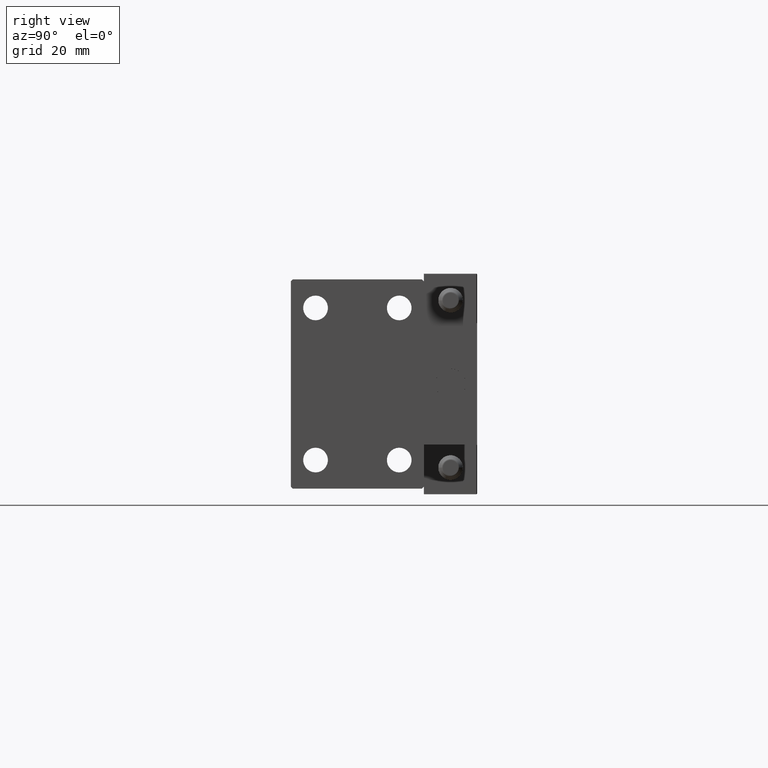
[diagram: clean part render]
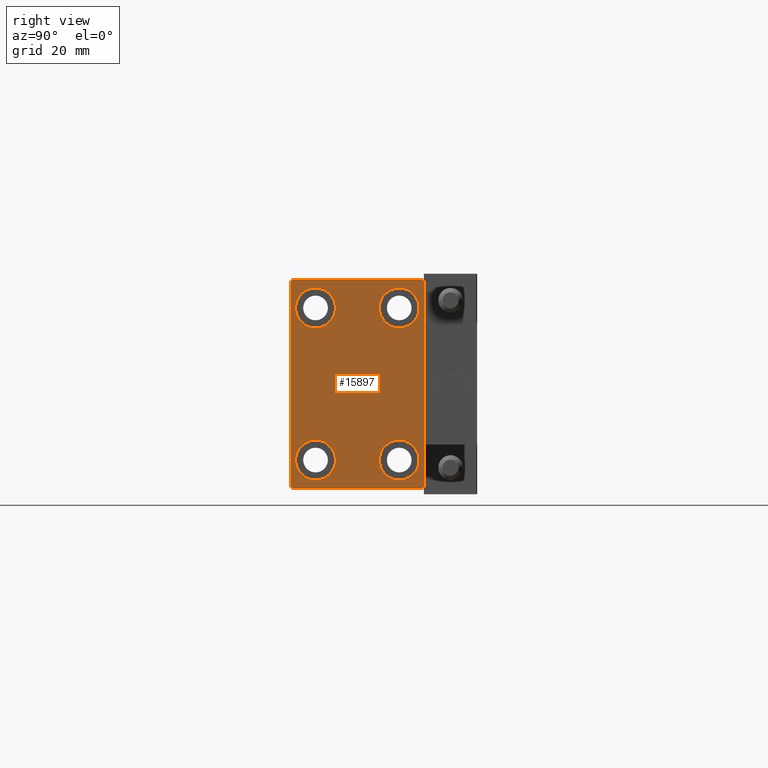
[diagram: same view with one face highlighted and labeled with its STEP entity id]
A machine part, right view. The second image highlights one B-rep face of the part: STEP entity #15897.
In plain terms, the highlighted planar face has unit normal (1, 0, 0).
Its self-contained STEP definition (entity closure, byte-faithful):
#383 = ORIENTED_EDGE ( 'NONE', *, *, #26421, .T. ) ;
#571 = DIRECTION ( 'NONE',  ( 0.000000000000000000, -1.000000000000000000, -1.982541115402065110E-16 ) ) ;
#702 = PLANE ( 'NONE',  #36662 ) ;
#1205 = CARTESIAN_POINT ( 'NONE',  ( 86.00000000000000000, -11.00000000000000355, -20.00000000000000000 ) ) ;
#1226 = LINE ( 'NONE', #8173, #25603 ) ;
#1358 = VERTEX_POINT ( 'NONE', #23162 ) ;
#1432 = ORIENTED_EDGE ( 'NONE', *, *, #45926, .T. ) ;
#1445 = VERTEX_POINT ( 'NONE', #20830 ) ;
#2418 = AXIS2_PLACEMENT_3D ( 'NONE', #15886, #31794, #47403 ) ;
#2863 = LINE ( 'NONE', #46400, #22756 ) ;
#3031 = DIRECTION ( 'NONE',  ( -1.000000000000000000, -0.000000000000000000, -0.000000000000000000 ) ) ;
#3241 = ORIENTED_EDGE ( 'NONE', *, *, #42506, .T. ) ;
#3338 = AXIS2_PLACEMENT_3D ( 'NONE', #17137, #21999, #13285 ) ;
#3478 = CARTESIAN_POINT ( 'NONE',  ( 86.00000000000000000, 11.00000000000000355, -20.00000000000000000 ) ) ;
#4323 = EDGE_CURVE ( 'NONE', #38607, #25696, #2863, .T. ) ;
#4584 = EDGE_LOOP ( 'NONE', ( #5891, #383 ) ) ;
#4774 = VECTOR ( 'NONE', #42666, 1000.000000000000114 ) ;
#5891 = ORIENTED_EDGE ( 'NONE', *, *, #44790, .T. ) ;
#6566 = EDGE_CURVE ( 'NONE', #26583, #49067, #31014, .T. ) ;
#6724 = VERTEX_POINT ( 'NONE', #18696 ) ;
#6832 = CARTESIAN_POINT ( 'NONE',  ( 86.00000000000000000, -17.50000000000000000, -27.50000000000000355 ) ) ;
#7674 = CARTESIAN_POINT ( 'NONE',  ( 86.00000000000000000, -11.00000000000000355, 25.25000000000000000 ) ) ;
#7900 = DIRECTION ( 'NONE',  ( 0.000000000000000000, 0.000000000000000000, 1.000000000000000000 ) ) ;
#8097 = DIRECTION ( 'NONE',  ( 0.000000000000000000, 0.000000000000000000, 1.000000000000000000 ) ) ;
#8173 = CARTESIAN_POINT ( 'NONE',  ( 86.00000000000000000, -17.50000000000000000, 27.49999999999999645 ) ) ;
#9074 = CARTESIAN_POINT ( 'NONE',  ( 86.00000000000000000, -17.50000000000000000, -27.00000000000000355 ) ) ;
#10005 = DIRECTION ( 'NONE',  ( 0.000000000000000000, 0.000000000000000000, 1.000000000000000000 ) ) ;
#10696 = DIRECTION ( 'NONE',  ( -0.000000000000000000, -0.7071067811865474617, 0.7071067811865474617 ) ) ;
#10907 = LINE ( 'NONE', #17860, #30293 ) ;
#11191 = LINE ( 'NONE', #46573, #49158 ) ;
#11568 = EDGE_CURVE ( 'NONE', #1358, #38607, #47956, .T. ) ;
#12298 = EDGE_CURVE ( 'NONE', #23417, #38104, #27052, .T. ) ;
#12806 = CARTESIAN_POINT ( 'NONE',  ( 86.00000000000000000, 17.50000000000000711, -27.00000000000000355 ) ) ;
#12814 = DIRECTION ( 'NONE',  ( -1.000000000000000000, -0.000000000000000000, -0.000000000000000000 ) ) ;
#13218 = DIRECTION ( 'NONE',  ( 1.000000000000000000, 0.000000000000000000, 0.000000000000000000 ) ) ;
#13223 = DIRECTION ( 'NONE',  ( -1.000000000000000000, -0.000000000000000000, -0.000000000000000000 ) ) ;
#13285 = DIRECTION ( 'NONE',  ( 0.000000000000000000, 0.000000000000000000, 1.000000000000000000 ) ) ;
#13470 = DIRECTION ( 'NONE',  ( 0.000000000000000000, 0.000000000000000000, 1.000000000000000000 ) ) ;
#14078 = EDGE_CURVE ( 'NONE', #38104, #26583, #41923, .T. ) ;
#14154 = EDGE_LOOP ( 'NONE', ( #3241, #33087 ) ) ;
#15013 = DIRECTION ( 'NONE',  ( 0.000000000000000000, 1.000000000000000000, 0.000000000000000000 ) ) ;
#15423 = ORIENTED_EDGE ( 'NONE', *, *, #14078, .T. ) ;
#15630 = CARTESIAN_POINT ( 'NONE',  ( 86.00000000000000000, -17.50000000000000000, 26.99999999999999645 ) ) ;
#15668 = CARTESIAN_POINT ( 'NONE',  ( 86.00000000000000000, -11.00000000000000355, 14.75000000000000000 ) ) ;
#15886 = CARTESIAN_POINT ( 'NONE',  ( 86.00000000000000000, 11.00000000000000355, 20.00000000000000000 ) ) ;
#15897 = ADVANCED_FACE ( 'NONE', ( #32470, #48587, #40392, #44238, #20925 ), #702, .T. ) ;
#16566 = CARTESIAN_POINT ( 'NONE',  ( 86.00000000000000000, 0.000000000000000000, 0.000000000000000000 ) ) ;
#17137 = CARTESIAN_POINT ( 'NONE',  ( 86.00000000000000000, 11.00000000000000355, -20.00000000000000000 ) ) ;
#17860 = CARTESIAN_POINT ( 'NONE',  ( 86.00000000000000000, 17.50000000000000711, -27.50000000000000355 ) ) ;
#18098 = DIRECTION ( 'NONE',  ( -1.000000000000000000, -0.000000000000000000, -0.000000000000000000 ) ) ;
#18223 = CIRCLE ( 'NONE', #46844, 5.250000000000000888 ) ;
#18696 = CARTESIAN_POINT ( 'NONE',  ( 86.00000000000000000, 11.00000000000000355, 25.25000000000000000 ) ) ;
#19187 = ORIENTED_EDGE ( 'NONE', *, *, #12298, .T. ) ;
#20295 = CARTESIAN_POINT ( 'NONE',  ( 86.00000000000000000, -11.00000000000000355, -25.25000000000000000 ) ) ;
#20518 = ORIENTED_EDGE ( 'NONE', *, *, #4323, .T. ) ;
#20525 = CIRCLE ( 'NONE', #3338, 5.250000000000000888 ) ;
#20826 = CARTESIAN_POINT ( 'NONE',  ( 86.00000000000000000, 11.00000000000000355, -14.75000000000000000 ) ) ;
#20830 = CARTESIAN_POINT ( 'NONE',  ( 86.00000000000000000, 11.00000000000000355, -25.25000000000000000 ) ) ;
#20925 = FACE_OUTER_BOUND ( 'NONE', #41106, .T. ) ;
#21181 = CARTESIAN_POINT ( 'NONE',  ( 86.00000000000000000, 11.00000000000000355, 14.75000000000000000 ) ) ;
#21193 = EDGE_CURVE ( 'NONE', #49067, #42769, #10907, .T. ) ;
#21371 = AXIS2_PLACEMENT_3D ( 'NONE', #42994, #3031, #7900 ) ;
#21783 = EDGE_CURVE ( 'NONE', #39930, #27228, #32791, .T. ) ;
#21880 = VECTOR ( 'NONE', #571, 1000.000000000000000 ) ;
#21999 = DIRECTION ( 'NONE',  ( -1.000000000000000000, -0.000000000000000000, -0.000000000000000000 ) ) ;
#22323 = CARTESIAN_POINT ( 'NONE',  ( 86.00000000000000000, -11.00000000000000355, 20.00000000000000000 ) ) ;
#22756 = VECTOR ( 'NONE', #34647, 1000.000000000000114 ) ;
#22855 = VERTEX_POINT ( 'NONE', #20295 ) ;
#22892 = CARTESIAN_POINT ( 'NONE',  ( 86.00000000000000000, 17.00000000000000711, -27.50000000000000355 ) ) ;
#23061 = DIRECTION ( 'NONE',  ( -0.000000000000000000, 0.7071067811865474617, 0.7071067811865474617 ) ) ;
#23162 = CARTESIAN_POINT ( 'NONE',  ( 86.00000000000000000, 17.00000000000001421, 27.50000000000000355 ) ) ;
#23249 = EDGE_LOOP ( 'NONE', ( #39696, #48678 ) ) ;
#23417 = VERTEX_POINT ( 'NONE', #9074 ) ;
#23555 = DIRECTION ( 'NONE',  ( 0.000000000000000000, 0.000000000000000000, 1.000000000000000000 ) ) ;
#23610 = AXIS2_PLACEMENT_3D ( 'NONE', #1205, #13223, #13470 ) ;
#23793 = AXIS2_PLACEMENT_3D ( 'NONE', #31510, #28165, #23555 ) ;
#24298 = DIRECTION ( 'NONE',  ( 0.000000000000000000, 0.000000000000000000, -1.000000000000000000 ) ) ;
#25122 = DIRECTION ( 'NONE',  ( 0.000000000000000000, 0.000000000000000000, 1.000000000000000000 ) ) ;
#25603 = VECTOR ( 'NONE', #24298, 1000.000000000000000 ) ;
#25696 = VERTEX_POINT ( 'NONE', #15630 ) ;
#26421 = EDGE_CURVE ( 'NONE', #29602, #1445, #18223, .T. ) ;
#26568 = DIRECTION ( 'NONE',  ( 0.000000000000000000, -1.261617073437677752E-16, 1.000000000000000000 ) ) ;
#26583 = VERTEX_POINT ( 'NONE', #22892 ) ;
#27052 = LINE ( 'NONE', #34750, #4774 ) ;
#27228 = VERTEX_POINT ( 'NONE', #15668 ) ;
#27848 = ORIENTED_EDGE ( 'NONE', *, *, #44969, .T. ) ;
#28165 = DIRECTION ( 'NONE',  ( -1.000000000000000000, -0.000000000000000000, -0.000000000000000000 ) ) ;
#29602 = VERTEX_POINT ( 'NONE', #20826 ) ;
#30237 = EDGE_CURVE ( 'NONE', #25696, #23417, #1226, .T. ) ;
#30293 = VECTOR ( 'NONE', #26568, 1000.000000000000000 ) ;
#30711 = VECTOR ( 'NONE', #23061, 1000.000000000000114 ) ;
#30972 = AXIS2_PLACEMENT_3D ( 'NONE', #47941, #12814, #25122 ) ;
#31014 = LINE ( 'NONE', #46114, #30711 ) ;
#31510 = CARTESIAN_POINT ( 'NONE',  ( 86.00000000000000000, -11.00000000000000355, 20.00000000000000000 ) ) ;
#31794 = DIRECTION ( 'NONE',  ( -1.000000000000000000, -0.000000000000000000, -0.000000000000000000 ) ) ;
#32347 = CARTESIAN_POINT ( 'NONE',  ( 86.00000000000000000, 17.50000000000000000, 27.50000000000000355 ) ) ;
#32470 = FACE_BOUND ( 'NONE', #4584, .T. ) ;
#32725 = CIRCLE ( 'NONE', #2418, 5.250000000000000888 ) ;
#32791 = CIRCLE ( 'NONE', #23793, 5.250000000000000888 ) ;
#33087 = ORIENTED_EDGE ( 'NONE', *, *, #39687, .T. ) ;
#34265 = CIRCLE ( 'NONE', #30972, 5.250000000000000888 ) ;
#34647 = DIRECTION ( 'NONE',  ( 0.000000000000000000, -0.7071067811865474617, -0.7071067811865474617 ) ) ;
#34750 = CARTESIAN_POINT ( 'NONE',  ( 86.00000000000000000, -22.25000000000000355, -22.25000000000000355 ) ) ;
#35348 = EDGE_CURVE ( 'NONE', #22855, #48574, #38239, .T. ) ;
#36662 = AXIS2_PLACEMENT_3D ( 'NONE', #16566, #13218, #43979 ) ;
#38104 = VERTEX_POINT ( 'NONE', #40718 ) ;
#38229 = ORIENTED_EDGE ( 'NONE', *, *, #11568, .T. ) ;
#38239 = CIRCLE ( 'NONE', #23610, 5.250000000000000888 ) ;
#38526 = AXIS2_PLACEMENT_3D ( 'NONE', #22323, #40767, #10005 ) ;
#38607 = VERTEX_POINT ( 'NONE', #44397 ) ;
#39340 = CIRCLE ( 'NONE', #38526, 5.250000000000000888 ) ;
#39687 = EDGE_CURVE ( 'NONE', #6724, #42954, #34265, .T. ) ;
#39696 = ORIENTED_EDGE ( 'NONE', *, *, #44506, .T. ) ;
#39930 = VERTEX_POINT ( 'NONE', #7674 ) ;
#40259 = EDGE_LOOP ( 'NONE', ( #45334, #1432 ) ) ;
#40392 = FACE_BOUND ( 'NONE', #14154, .T. ) ;
#40718 = CARTESIAN_POINT ( 'NONE',  ( 86.00000000000000000, -17.00000000000000000, -27.50000000000000355 ) ) ;
#40767 = DIRECTION ( 'NONE',  ( -1.000000000000000000, -0.000000000000000000, -0.000000000000000000 ) ) ;
#41106 = EDGE_LOOP ( 'NONE', ( #38229, #20518, #45585, #19187, #15423, #47505, #50375, #27848 ) ) ;
#41923 = LINE ( 'NONE', #6832, #48170 ) ;
#41970 = CARTESIAN_POINT ( 'NONE',  ( 86.00000000000000000, 17.50000000000000000, 27.00000000000001776 ) ) ;
#42506 = EDGE_CURVE ( 'NONE', #42954, #6724, #32725, .T. ) ;
#42666 = DIRECTION ( 'NONE',  ( -0.000000000000000000, 0.7071067811865474617, -0.7071067811865474617 ) ) ;
#42769 = VERTEX_POINT ( 'NONE', #41970 ) ;
#42954 = VERTEX_POINT ( 'NONE', #21181 ) ;
#42994 = CARTESIAN_POINT ( 'NONE',  ( 86.00000000000000000, -11.00000000000000355, -20.00000000000000000 ) ) ;
#43979 = DIRECTION ( 'NONE',  ( 0.000000000000000000, 0.000000000000000000, -1.000000000000000000 ) ) ;
#44238 = FACE_BOUND ( 'NONE', #40259, .T. ) ;
#44397 = CARTESIAN_POINT ( 'NONE',  ( 86.00000000000000000, -17.00000000000000000, 27.49999999999999645 ) ) ;
#44506 = EDGE_CURVE ( 'NONE', #27228, #39930, #39340, .T. ) ;
#44790 = EDGE_CURVE ( 'NONE', #1445, #29602, #20525, .T. ) ;
#44969 = EDGE_CURVE ( 'NONE', #42769, #1358, #11191, .T. ) ;
#45091 = CIRCLE ( 'NONE', #21371, 5.250000000000000888 ) ;
#45334 = ORIENTED_EDGE ( 'NONE', *, *, #35348, .T. ) ;
#45585 = ORIENTED_EDGE ( 'NONE', *, *, #30237, .T. ) ;
#45926 = EDGE_CURVE ( 'NONE', #48574, #22855, #45091, .T. ) ;
#46114 = CARTESIAN_POINT ( 'NONE',  ( 86.00000000000000000, 22.25000000000000711, -22.25000000000000711 ) ) ;
#46400 = CARTESIAN_POINT ( 'NONE',  ( 86.00000000000000000, -22.24999999999999645, 22.24999999999999645 ) ) ;
#46573 = CARTESIAN_POINT ( 'NONE',  ( 86.00000000000000000, 22.25000000000000711, 22.25000000000000711 ) ) ;
#46844 = AXIS2_PLACEMENT_3D ( 'NONE', #3478, #18098, #8097 ) ;
#47403 = DIRECTION ( 'NONE',  ( 0.000000000000000000, 0.000000000000000000, 1.000000000000000000 ) ) ;
#47505 = ORIENTED_EDGE ( 'NONE', *, *, #6566, .T. ) ;
#47941 = CARTESIAN_POINT ( 'NONE',  ( 86.00000000000000000, 11.00000000000000355, 20.00000000000000000 ) ) ;
#47956 = LINE ( 'NONE', #32347, #21880 ) ;
#48170 = VECTOR ( 'NONE', #15013, 1000.000000000000000 ) ;
#48574 = VERTEX_POINT ( 'NONE', #49313 ) ;
#48587 = FACE_BOUND ( 'NONE', #23249, .T. ) ;
#48678 = ORIENTED_EDGE ( 'NONE', *, *, #21783, .T. ) ;
#49067 = VERTEX_POINT ( 'NONE', #12806 ) ;
#49158 = VECTOR ( 'NONE', #10696, 1000.000000000000114 ) ;
#49313 = CARTESIAN_POINT ( 'NONE',  ( 86.00000000000000000, -11.00000000000000355, -14.75000000000000000 ) ) ;
#50375 = ORIENTED_EDGE ( 'NONE', *, *, #21193, .T. ) ;